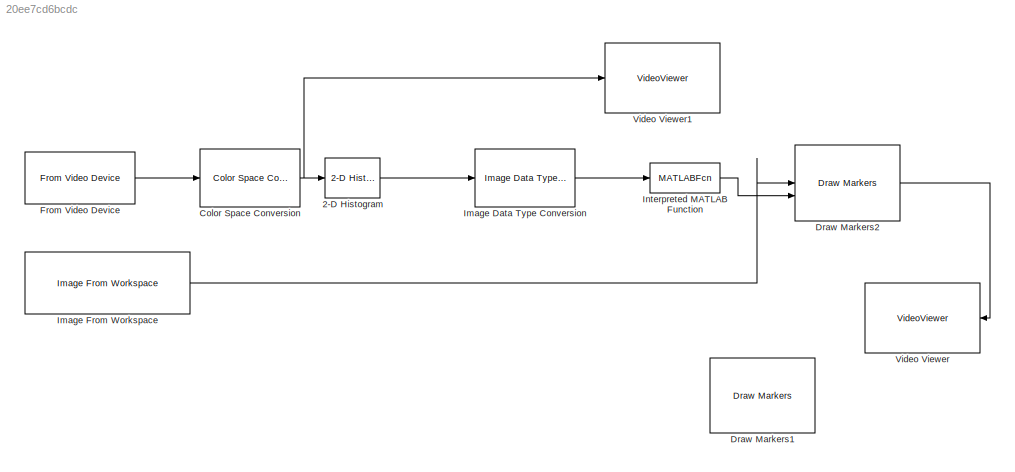
MODEL slx_20ee7cd6bcdc
KIND model
CONFIG AbsTol = auto
CONFIG EnableMultiTasking = off
CONFIG FixedStep = auto
CONFIG MaxStep = auto
CONFIG MinStep = auto
CONFIG RelTol = 1e-3
CONFIG SampleTimeConstraint = Unconstrained
CONFIG SolverName = VariableStepAuto
CONFIG StartTime = 0.0
CONFIG StopTime = inf
BLOCK [Reference] 2-D Histogram  REF=visionstatistics/2-D Histogram
  SourceBlock = visionstatistics/2-D Histogram
  SourceType = 2-D Histogram
  UserDataPersistent = on
BLOCK [Reference] Color Space Conversion  REF=visionconversions/Color Space
 Conversion
  SourceBlock = visionconversions/Color Space\n Conversion
  SourceType = Color Space Conversion
BLOCK [Reference] Draw Markers1  REF=visiontextngfix/Draw Markers
  SourceBlock = visiontextngfix/Draw Markers
  SourceType = Draw Markers
BLOCK [Reference] Draw Markers2  REF=visiontextngfix/Draw Markers
  SourceBlock = visiontextngfix/Draw Markers
  SourceType = Draw Markers
BLOCK [Reference] From Video Device  REF=imaqlib/From Video Device
  SourceBlock = imaqlib/From Video Device
  SourceType = From Video Device
  UserDataPersistent = on
BLOCK [Reference] Image Data Type Conversion  REF=visionconversions/Image Data Type
Conversion
  SourceBlock = visionconversions/Image Data Type\nConversion
  SourceType = Image Data Type Conversion
BLOCK [Reference] Image From Workspace  REF=visionsources/Image From Workspace
  SourceBlock = visionsources/Image From Workspace
  SourceType = Image From Workspace
  Tag = vipblks_nd
BLOCK [MATLABFcn] Interpreted MATLAB Function
  MATLABFcn = histoacu
  Output1D = off
  OutputSignalType = real
BLOCK [VideoViewer] Video Viewer
  FigPos = [522.333333333333 559.333333333333 620 392.666666666667]
  NameLocation = top
  ScopeSpecificationString = vipscopes.VideoViewerScopeCfg('CurrentConfiguration', extmgr.ConfigurationSet(extmgr.Configuration('Core','General UI',true),extmgr.Configuration('Core','Source UI',true),extmgr.Configuration('Sources','WiredSimulink',true),extmgr.Configuration('Visuals','Video',true),extmgr.Configuration('Tools','Image Navigation Tools',true),extmgr.Configuration('Tools','Image Tool',true),extmgr.Configuration('T...<+114ch>
BLOCK [VideoViewer] Video Viewer1
  FigPos = [5.66666666666667 561.333333333333 620 392.666666666667]
  ScopeSpecificationString = vipscopes.VideoViewerScopeCfg('CurrentConfiguration', extmgr.ConfigurationSet(extmgr.Configuration('Core','General UI',true),extmgr.Configuration('Core','Source UI',true),extmgr.Configuration('Sources','WiredSimulink',true),extmgr.Configuration('Visuals','Video',true),extmgr.Configuration('Tools','Image Navigation Tools',true),extmgr.Configuration('Tools','Image Tool',true),extmgr.Configuration('T...<+114ch>
LINE 2-D Histogram:1 -> Image Data Type Conversion:1
NET Color Space Conversion:1 -> 2-D Histogram:1, Video Viewer1:1
LINE Draw Markers2:1 -> Video Viewer:1
LINE From Video Device:1 -> Color Space Conversion:1
LINE Image Data Type Conversion:1 -> Interpreted MATLAB Function:1
LINE Image From Workspace:1 -> Draw Markers2:1
LINE Interpreted MATLAB Function:1 -> Draw Markers2:2
note: NET lines group one-source signal fan-out (src -> all destinations, sorted); 1:1 wires keep LINE
